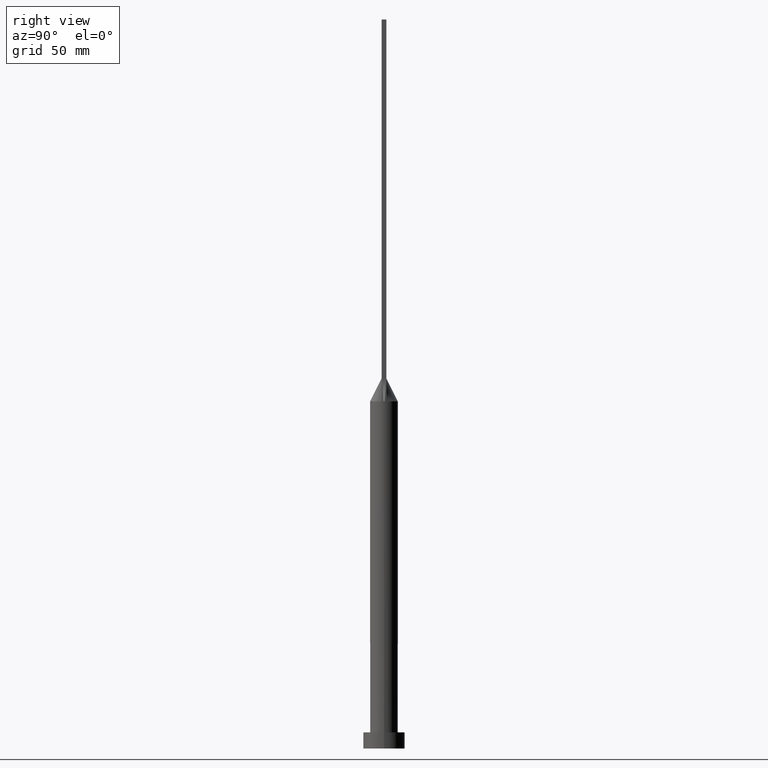
[diagram: clean part render]
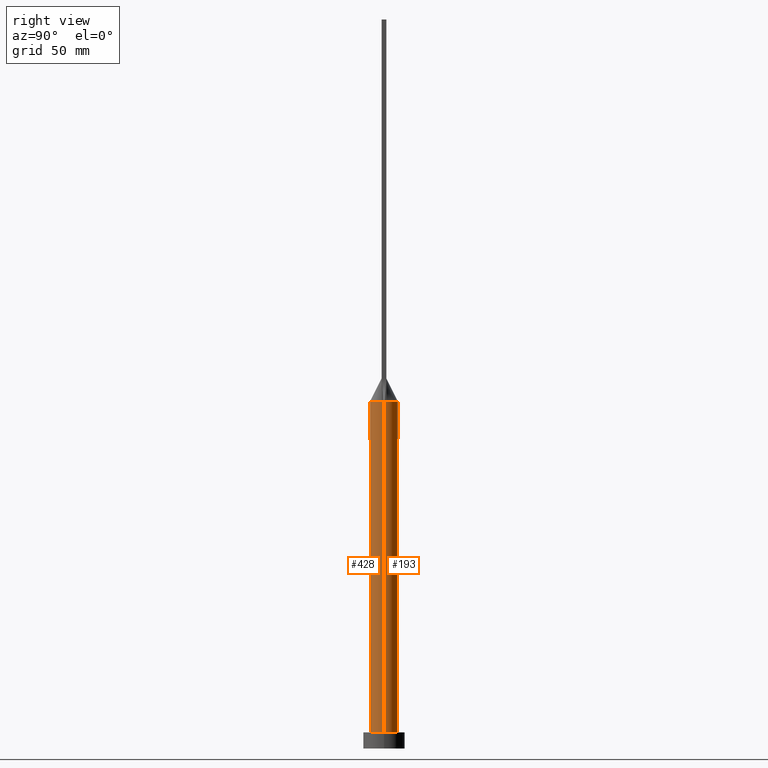
[diagram: same view with one multi-face feature highlighted, each face labeled with its STEP entity id]
A machine part, right view. The highlighted faces form ONE feature: a constant-radius fillet chain: 2 tangent blend faces with common blend radius 6 mm. The faces share edges in the B-rep.
Their STEP definitions:
[1] entity #193 (Cylinder):
#16 = CARTESIAN_POINT ( 'NONE',  ( 5.674157483178163375, 2.041064365575945061, 150.0000000000000000 ) ) ;
#19 = VERTEX_POINT ( 'NONE', #179 ) ;
#24 = CARTESIAN_POINT ( 'NONE',  ( 0.000000000000000000, 0.000000000000000000, 150.0000000000000000 ) ) ;
#28 = CARTESIAN_POINT ( 'NONE',  ( 2.785082292717041330, 5.329682650394847343, 150.0000000000000000 ) ) ;
#32 = LINE ( 'NONE', #43, #582 ) ;
#42 = EDGE_CURVE ( 'NONE', #116, #453, #474, .T. ) ;
#43 = CARTESIAN_POINT ( 'NONE',  ( 6.000000000000000888, 7.347880794884120722E-16, 150.0000000000000000 ) ) ;
#60 = CARTESIAN_POINT ( 'NONE',  ( -5.911281259919041631, 1.028048927730119244, 150.0000000000000000 ) ) ;
#74 = DIRECTION ( 'NONE',  ( -0.000000000000000000, -0.000000000000000000, -1.000000000000000000 ) ) ;
#76 = B_SPLINE_CURVE_WITH_KNOTS ( 'NONE', 3,
 ( #591, #266, #16, #500, #359, #490, #161, #205, #28, #250, #117, #586, #158, #219, #351, #410, #262, #355, #542, #599, #594, #170, #112, #486, #550, #60 ),
 .UNSPECIFIED., .F., .F.,
 ( 4, 2, 2, 2, 2, 2, 2, 2, 2, 2, 2, 2, 4 ),
 ( 0.000000000000000000, 0.1250000000000000000, 0.2500000000000000000, 0.3125000000000000000, 0.3750000000000000000, 0.4375000000000000000, 0.5000000000000000000, 0.5625000000000000000, 0.6250000000000000000, 0.6875000000000000000, 0.7500000000000000000, 0.8750000000000000000, 1.000000000000000000 ),
 .UNSPECIFIED. ) ;
#96 = CIRCLE ( 'NONE', #188, 6.000000000000000888 ) ;
#112 = CARTESIAN_POINT ( 'NONE',  ( -5.155904004142094266, 3.127085030567958501, 150.0000000000000000 ) ) ;
#113 = VECTOR ( 'NONE', #74, 1000.000000000000000 ) ;
#116 = VERTEX_POINT ( 'NONE', #470 ) ;
#117 = CARTESIAN_POINT ( 'NONE',  ( 1.654707822076785684, 5.782296865845954592, 150.0000000000000853 ) ) ;
#128 = DIRECTION ( 'NONE',  ( 0.000000000000000000, 0.000000000000000000, 1.000000000000000000 ) ) ;
#134 = CARTESIAN_POINT ( 'NONE',  ( 0.000000000000000000, 0.000000000000000000, 7.000000000000000000 ) ) ;
#138 = DIRECTION ( 'NONE',  ( 0.000000000000000000, 0.000000000000000000, 1.000000000000000000 ) ) ;
#157 = ORIENTED_EDGE ( 'NONE', *, *, #348, .T. ) ;
#158 = CARTESIAN_POINT ( 'NONE',  ( 0.4205485882577719159, 6.000000000000000000, 150.0000000000000568 ) ) ;
#161 = CARTESIAN_POINT ( 'NONE',  ( 3.755743307515265084, 4.694751915224760097, 150.0000000000000000 ) ) ;
#168 = EDGE_LOOP ( 'NONE', ( #494, #157, #488, #450, #173, #569 ) ) ;
#170 = CARTESIAN_POINT ( 'NONE',  ( -4.788055724916949529, 3.685825800347683590, 150.0000000000000000 ) ) ;
#173 = ORIENTED_EDGE ( 'NONE', *, *, #482, .F. ) ;
#174 = CYLINDRICAL_SURFACE ( 'NONE', #253, 6.000000000000000888 ) ;
#179 = CARTESIAN_POINT ( 'NONE',  ( -6.000000000000000888, 0.000000000000000000, 7.000000000000000000 ) ) ;
#188 = AXIS2_PLACEMENT_3D ( 'NONE', #478, #138, #480 ) ;
#193 = ADVANCED_FACE ( 'NONE', ( #259 ), #174, .T. ) ;
#205 = CARTESIAN_POINT ( 'NONE',  ( 3.129188161608685181, 5.133661927581551154, 150.0000000000000000 ) ) ;
#219 = CARTESIAN_POINT ( 'NONE',  ( -0.4205485882577720824, 6.000000000000000888, 150.0000000000000284 ) ) ;
#231 = CARTESIAN_POINT ( 'NONE',  ( 6.000000000000000888, 7.347880794884120722E-16, 7.000000000000000000 ) ) ;
#235 = VERTEX_POINT ( 'NONE', #444 ) ;
#250 = CARTESIAN_POINT ( 'NONE',  ( 2.047812955694715331, 5.654083712646525761, 150.0000000000000284 ) ) ;
#253 = AXIS2_PLACEMENT_3D ( 'NONE', #24, #300, #401 ) ;
#259 = FACE_OUTER_BOUND ( 'NONE', #168, .T. ) ;
#262 = CARTESIAN_POINT ( 'NONE',  ( -2.047812955694715775, 5.654083712646525761, 149.9999999999999716 ) ) ;
#266 = CARTESIAN_POINT ( 'NONE',  ( 5.826866859193277293, 1.513368149424917153, 150.0000000000000284 ) ) ;
#280 = EDGE_CURVE ( 'NONE', #409, #19, #458, .T. ) ;
#297 = EDGE_CURVE ( 'NONE', #453, #235, #76, .T. ) ;
#300 = DIRECTION ( 'NONE',  ( -0.000000000000000000, -0.000000000000000000, -1.000000000000000000 ) ) ;
#316 = AXIS2_PLACEMENT_3D ( 'NONE', #134, #340, #338 ) ;
#327 = AXIS2_PLACEMENT_3D ( 'NONE', #558, #128, #465 ) ;
#338 = DIRECTION ( 'NONE',  ( 1.000000000000000000, 0.000000000000000000, 0.000000000000000000 ) ) ;
#340 = DIRECTION ( 'NONE',  ( 0.000000000000000000, 0.000000000000000000, 1.000000000000000000 ) ) ;
#348 = EDGE_CURVE ( 'NONE', #116, #403, #32, .T. ) ;
#351 = CARTESIAN_POINT ( 'NONE',  ( -0.8409966403356965436, 5.955311887059998810, 150.0000000000000568 ) ) ;
#355 = CARTESIAN_POINT ( 'NONE',  ( -2.785082292717042218, 5.329682650394847343, 150.0000000000000000 ) ) ;
#359 = CARTESIAN_POINT ( 'NONE',  ( 4.788055724916948641, 3.685825800347680925, 149.9999999999999716 ) ) ;
#401 = DIRECTION ( 'NONE',  ( -1.000000000000000000, 0.000000000000000000, 0.000000000000000000 ) ) ;
#403 = VERTEX_POINT ( 'NONE', #231 ) ;
#409 = VERTEX_POINT ( 'NONE', #469 ) ;
#410 = CARTESIAN_POINT ( 'NONE',  ( -1.654707822076785906, 5.782296865845955480, 150.0000000000000568 ) ) ;
#411 = EDGE_CURVE ( 'NONE', #403, #19, #607, .T. ) ;
#444 = CARTESIAN_POINT ( 'NONE',  ( -5.911281259919041631, 1.028048927730119244, 150.0000000000000000 ) ) ;
#450 = ORIENTED_EDGE ( 'NONE', *, *, #280, .F. ) ;
#453 = VERTEX_POINT ( 'NONE', #524 ) ;
#458 = LINE ( 'NONE', #503, #113 ) ;
#465 = DIRECTION ( 'NONE',  ( 1.000000000000000000, 0.000000000000000000, 0.000000000000000000 ) ) ;
#469 = CARTESIAN_POINT ( 'NONE',  ( -5.999671961706731338, 1.720595681592925272E-14, 150.0000000000000000 ) ) ;
#470 = CARTESIAN_POINT ( 'NONE',  ( 5.999671961706731338, 1.511234776062676333E-15, 150.0000000000000000 ) ) ;
#474 = CIRCLE ( 'NONE', #327, 6.000000000000000888 ) ;
#478 = CARTESIAN_POINT ( 'NONE',  ( 0.000000000000000000, 0.000000000000000000, 150.0000000000000000 ) ) ;
#480 = DIRECTION ( 'NONE',  ( 1.000000000000000000, 0.000000000000000000, 0.000000000000000000 ) ) ;
#482 = EDGE_CURVE ( 'NONE', #235, #409, #96, .T. ) ;
#486 = CARTESIAN_POINT ( 'NONE',  ( -5.674157483178163375, 2.041064365575947726, 150.0000000000000000 ) ) ;
#488 = ORIENTED_EDGE ( 'NONE', *, *, #411, .T. ) ;
#490 = CARTESIAN_POINT ( 'NONE',  ( 4.038230363771782905, 4.452009983475585742, 150.0000000000000000 ) ) ;
#494 = ORIENTED_EDGE ( 'NONE', *, *, #42, .F. ) ;
#500 = CARTESIAN_POINT ( 'NONE',  ( 5.155904004142093378, 3.127085030567957169, 150.0000000000000000 ) ) ;
#503 = CARTESIAN_POINT ( 'NONE',  ( -6.000000000000000888, 0.000000000000000000, 150.0000000000000000 ) ) ;
#512 = DIRECTION ( 'NONE',  ( -0.000000000000000000, -0.000000000000000000, -1.000000000000000000 ) ) ;
#524 = CARTESIAN_POINT ( 'NONE',  ( 5.911270528918048939, 1.028047048507483519, 150.0000000000000000 ) ) ;
#542 = CARTESIAN_POINT ( 'NONE',  ( -3.129188161608685181, 5.133661927581553819, 150.0000000000000000 ) ) ;
#550 = CARTESIAN_POINT ( 'NONE',  ( -5.826866859193279069, 1.513368149424918263, 150.0000000000000000 ) ) ;
#558 = CARTESIAN_POINT ( 'NONE',  ( 0.000000000000000000, 0.000000000000000000, 150.0000000000000000 ) ) ;
#569 = ORIENTED_EDGE ( 'NONE', *, *, #297, .F. ) ;
#582 = VECTOR ( 'NONE', #512, 1000.000000000000000 ) ;
#586 = CARTESIAN_POINT ( 'NONE',  ( 0.8409966403356972098, 5.955311887059998810, 150.0000000000001137 ) ) ;
#591 = CARTESIAN_POINT ( 'NONE',  ( 5.911270528918048939, 1.028047048507483519, 150.0000000000000000 ) ) ;
#594 = CARTESIAN_POINT ( 'NONE',  ( -4.038230363771780240, 4.452009983475584853, 149.9999999999999432 ) ) ;
#599 = CARTESIAN_POINT ( 'NONE',  ( -3.755743307515264195, 4.694751915224762762, 150.0000000000000568 ) ) ;
#607 = CIRCLE ( 'NONE', #316, 6.000000000000000888 ) ;
[2] entity #428 (Cylinder):
#12 = CIRCLE ( 'NONE', #583, 6.000000000000000888 ) ;
#19 = VERTEX_POINT ( 'NONE', #179 ) ;
#31 = VERTEX_POINT ( 'NONE', #367 ) ;
#32 = LINE ( 'NONE', #43, #582 ) ;
#34 = AXIS2_PLACEMENT_3D ( 'NONE', #416, #602, #605 ) ;
#40 = ORIENTED_EDGE ( 'NONE', *, *, #598, .T. ) ;
#43 = CARTESIAN_POINT ( 'NONE',  ( 6.000000000000000888, 7.347880794884120722E-16, 150.0000000000000000 ) ) ;
#47 = CIRCLE ( 'NONE', #34, 6.000000000000000888 ) ;
#48 = ORIENTED_EDGE ( 'NONE', *, *, #435, .F. ) ;
#53 = DIRECTION ( 'NONE',  ( 0.000000000000000000, 0.000000000000000000, 1.000000000000000000 ) ) ;
#56 = CARTESIAN_POINT ( 'NONE',  ( 0.000000000000000000, 0.000000000000000000, 150.0000000000000000 ) ) ;
#74 = DIRECTION ( 'NONE',  ( -0.000000000000000000, -0.000000000000000000, -1.000000000000000000 ) ) ;
#93 = CYLINDRICAL_SURFACE ( 'NONE', #535, 6.000000000000000888 ) ;
#100 = CARTESIAN_POINT ( 'NONE',  ( 0.000000000000000000, 0.000000000000000000, 150.0000000000000000 ) ) ;
#113 = VECTOR ( 'NONE', #74, 1000.000000000000000 ) ;
#116 = VERTEX_POINT ( 'NONE', #470 ) ;
#147 = AXIS2_PLACEMENT_3D ( 'NONE', #100, #484, #285 ) ;
#160 = VERTEX_POINT ( 'NONE', #191 ) ;
#179 = CARTESIAN_POINT ( 'NONE',  ( -6.000000000000000888, 0.000000000000000000, 7.000000000000000000 ) ) ;
#191 = CARTESIAN_POINT ( 'NONE',  ( 5.911281968884419591, -1.028049053400068802, 150.0000000000000000 ) ) ;
#195 = FACE_OUTER_BOUND ( 'NONE', #590, .T. ) ;
#196 = CIRCLE ( 'NONE', #566, 6.000000000000000888 ) ;
#197 = DIRECTION ( 'NONE',  ( 1.000000000000000000, 0.000000000000000000, 0.000000000000000000 ) ) ;
#211 = ORIENTED_EDGE ( 'NONE', *, *, #489, .F. ) ;
#231 = CARTESIAN_POINT ( 'NONE',  ( 6.000000000000000888, 7.347880794884120722E-16, 7.000000000000000000 ) ) ;
#242 = DIRECTION ( 'NONE',  ( 1.000000000000000000, -1.332267629550187849E-14, 0.000000000000000000 ) ) ;
#247 = CARTESIAN_POINT ( 'NONE',  ( 0.000000000000000000, 0.000000000000000000, 150.0000000000000000 ) ) ;
#249 = ORIENTED_EDGE ( 'NONE', *, *, #348, .F. ) ;
#280 = EDGE_CURVE ( 'NONE', #409, #19, #458, .T. ) ;
#285 = DIRECTION ( 'NONE',  ( 1.000000000000000000, 0.000000000000000000, 0.000000000000000000 ) ) ;
#311 = ORIENTED_EDGE ( 'NONE', *, *, #495, .F. ) ;
#348 = EDGE_CURVE ( 'NONE', #116, #403, #32, .T. ) ;
#367 = CARTESIAN_POINT ( 'NONE',  ( -5.911272568678778150, -1.028047416901946898, 150.0000000000000000 ) ) ;
#390 = DIRECTION ( 'NONE',  ( -0.000000000000000000, -0.000000000000000000, -1.000000000000000000 ) ) ;
#391 = DIRECTION ( 'NONE',  ( -1.000000000000000000, 0.000000000000000000, 0.000000000000000000 ) ) ;
#403 = VERTEX_POINT ( 'NONE', #231 ) ;
#409 = VERTEX_POINT ( 'NONE', #469 ) ;
#416 = CARTESIAN_POINT ( 'NONE',  ( 0.000000000000000000, 0.000000000000000000, 7.000000000000000000 ) ) ;
#428 = ADVANCED_FACE ( 'NONE', ( #195 ), #93, .T. ) ;
#434 = DIRECTION ( 'NONE',  ( 0.000000000000000000, 0.000000000000000000, 1.000000000000000000 ) ) ;
#435 = EDGE_CURVE ( 'NONE', #160, #116, #12, .T. ) ;
#438 = CARTESIAN_POINT ( 'NONE',  ( 0.000000000000000000, 0.000000000000000000, 150.0000000000000000 ) ) ;
#458 = LINE ( 'NONE', #503, #113 ) ;
#469 = CARTESIAN_POINT ( 'NONE',  ( -5.999671961706731338, 1.720595681592925272E-14, 150.0000000000000000 ) ) ;
#470 = CARTESIAN_POINT ( 'NONE',  ( 5.999671961706731338, 1.511234776062676333E-15, 150.0000000000000000 ) ) ;
#483 = CIRCLE ( 'NONE', #147, 6.000000000000000888 ) ;
#484 = DIRECTION ( 'NONE',  ( 0.000000000000000000, 0.000000000000000000, 1.000000000000000000 ) ) ;
#489 = EDGE_CURVE ( 'NONE', #31, #160, #196, .T. ) ;
#495 = EDGE_CURVE ( 'NONE', #409, #31, #483, .T. ) ;
#503 = CARTESIAN_POINT ( 'NONE',  ( -6.000000000000000888, 0.000000000000000000, 150.0000000000000000 ) ) ;
#512 = DIRECTION ( 'NONE',  ( -0.000000000000000000, -0.000000000000000000, -1.000000000000000000 ) ) ;
#520 = ORIENTED_EDGE ( 'NONE', *, *, #280, .T. ) ;
#535 = AXIS2_PLACEMENT_3D ( 'NONE', #56, #390, #391 ) ;
#566 = AXIS2_PLACEMENT_3D ( 'NONE', #438, #53, #197 ) ;
#582 = VECTOR ( 'NONE', #512, 1000.000000000000000 ) ;
#583 = AXIS2_PLACEMENT_3D ( 'NONE', #247, #434, #242 ) ;
#590 = EDGE_LOOP ( 'NONE', ( #249, #48, #211, #311, #520, #40 ) ) ;
#598 = EDGE_CURVE ( 'NONE', #19, #403, #47, .T. ) ;
#602 = DIRECTION ( 'NONE',  ( 0.000000000000000000, 0.000000000000000000, 1.000000000000000000 ) ) ;
#605 = DIRECTION ( 'NONE',  ( 1.000000000000000000, 0.000000000000000000, 0.000000000000000000 ) ) ;